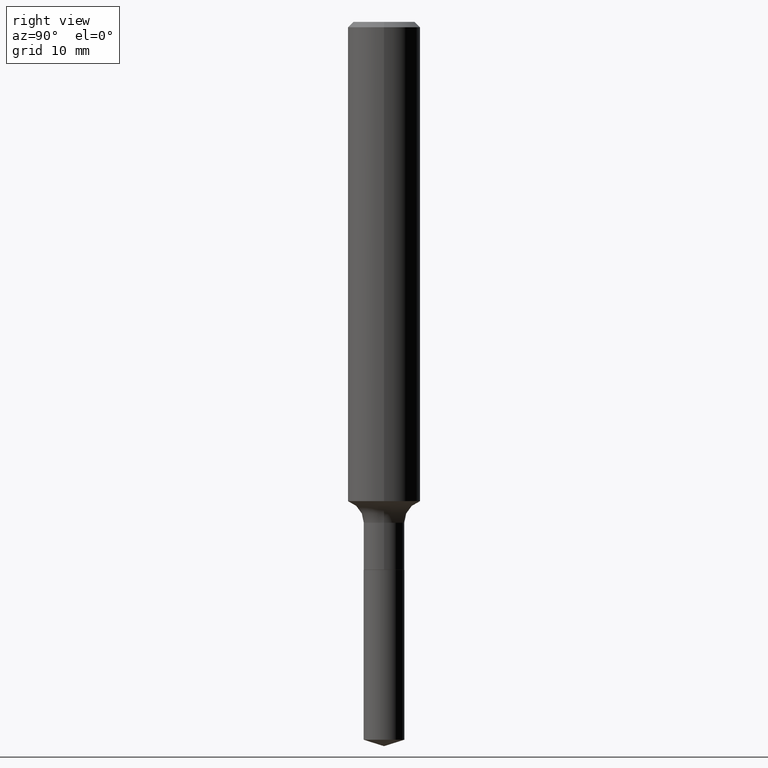
[diagram: clean part render]
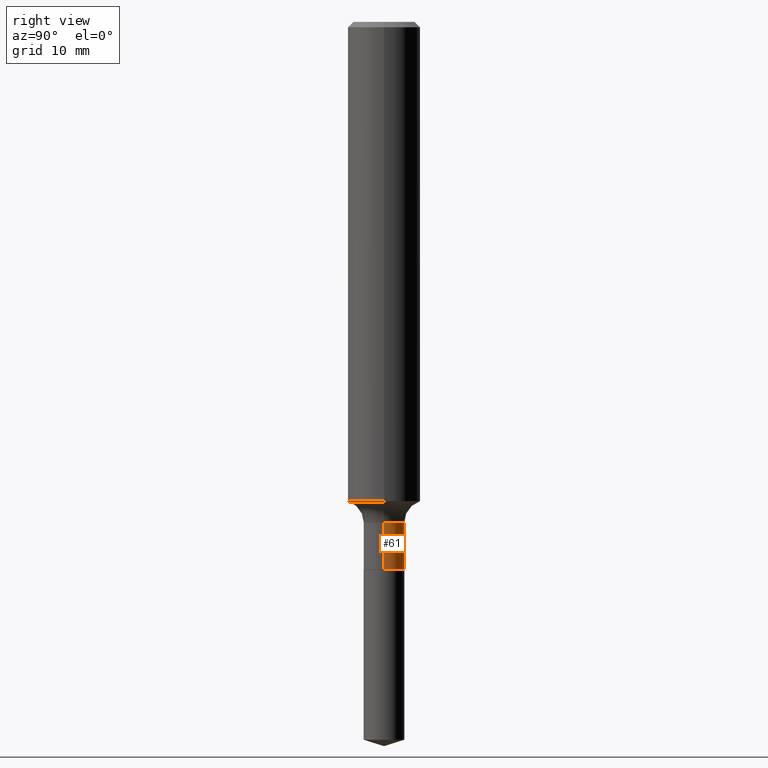
[diagram: same view with one face highlighted and labeled with its STEP entity id]
A machine part, right view. The second image highlights one B-rep face of the part: STEP entity #61.
In plain terms, the highlighted cylindrical surface (edge-blend (fillet) strip) has radius 1.7856 mm, axis along (-0, 0, 1).
Its self-contained STEP definition (entity closure, byte-faithful):
#11 = EDGE_CURVE ( 'NONE', #13, #136, #66, .T. ) ;
#12 = CARTESIAN_POINT ( 'NONE',  ( -0.07030000000000000138, -5.818323939397324002E-15, -1.890100000000000335 ) ) ;
#13 = VERTEX_POINT ( 'NONE', #65 ) ;
#29 = CARTESIAN_POINT ( 'NONE',  ( 0.000000000000000000, 0.000000000000000000, 0.000000000000000000 ) ) ;
#50 = VECTOR ( 'NONE', #208, 39.37007874015748143 ) ;
#51 = LINE ( 'NONE', #240, #50 ) ;
#53 = CARTESIAN_POINT ( 'NONE',  ( 4.227971019013483248E-29, -6.036422086725915643E-15, -1.728900000000000325 ) ) ;
#61 = ADVANCED_FACE ( 'NONE', ( #100 ), #407, .T. ) ;
#65 = CARTESIAN_POINT ( 'NONE',  ( 0.07030000000000000138, -7.090151154788775429E-15, -1.890100000000000335 ) ) ;
#66 = LINE ( 'NONE', #335, #356 ) ;
#68 = AXIS2_PLACEMENT_3D ( 'NONE', #53, #467, #311 ) ;
#80 = EDGE_CURVE ( 'NONE', #13, #315, #392, .T. ) ;
#100 = FACE_OUTER_BOUND ( 'NONE', #323, .T. ) ;
#136 = VERTEX_POINT ( 'NONE', #221 ) ;
#143 = DIRECTION ( 'NONE',  ( -2.445468806185136597E-29, 3.491481338843145583E-15, 1.000000000000000000 ) ) ;
#180 = CARTESIAN_POINT ( 'NONE',  ( 4.622180590570527221E-29, -6.599248878547431270E-15, -1.890100000000000335 ) ) ;
#208 = DIRECTION ( 'NONE',  ( -2.445468806185136877E-29, 3.491481338843145188E-15, 1.000000000000000000 ) ) ;
#210 = ORIENTED_EDGE ( 'NONE', *, *, #11, .F. ) ;
#221 = CARTESIAN_POINT ( 'NONE',  ( 0.07029999999999998750, -6.527324362967259801E-15, -1.728900000000000325 ) ) ;
#235 = CARTESIAN_POINT ( 'NONE',  ( -0.07029999999999998750, -5.818323939397324002E-15, -1.728900000000000325 ) ) ;
#240 = CARTESIAN_POINT ( 'NONE',  ( -0.07029999999999998750, 4.995115432393503418E-16, -3.458011368449198169E-30 ) ) ;
#251 = DIRECTION ( 'NONE',  ( 1.000000000000000000, -6.982962677686266711E-15, 4.876176775795935793E-29 ) ) ;
#256 = DIRECTION ( 'NONE',  ( -2.445468806185136877E-29, 3.491481338843145188E-15, 1.000000000000000000 ) ) ;
#274 = ORIENTED_EDGE ( 'NONE', *, *, #80, .T. ) ;
#280 = VERTEX_POINT ( 'NONE', #235 ) ;
#294 = DIRECTION ( 'NONE',  ( -2.445468806185136597E-29, 3.491481338843145583E-15, 1.000000000000000000 ) ) ;
#303 = AXIS2_PLACEMENT_3D ( 'NONE', #180, #143, #488 ) ;
#306 = ORIENTED_EDGE ( 'NONE', *, *, #429, .F. ) ;
#311 = DIRECTION ( 'NONE',  ( 1.000000000000000000, -6.982962677686266711E-15, 0.000000000000000000 ) ) ;
#315 = VERTEX_POINT ( 'NONE', #12 ) ;
#323 = EDGE_LOOP ( 'NONE', ( #274, #380, #306, #210 ) ) ;
#335 = CARTESIAN_POINT ( 'NONE',  ( 0.07029999999999998750, -4.909022762413444543E-16, 3.427952273384542436E-30 ) ) ;
#356 = VECTOR ( 'NONE', #256, 39.37007874015748143 ) ;
#360 = AXIS2_PLACEMENT_3D ( 'NONE', #29, #294, #251 ) ;
#380 = ORIENTED_EDGE ( 'NONE', *, *, #460, .T. ) ;
#392 = CIRCLE ( 'NONE', #303, 0.07030000000000000138 ) ;
#407 = CYLINDRICAL_SURFACE ( 'NONE', #360, 0.07029999999999998750 ) ;
#429 = EDGE_CURVE ( 'NONE', #136, #280, #458, .T. ) ;
#458 = CIRCLE ( 'NONE', #68, 0.07029999999999998750 ) ;
#460 = EDGE_CURVE ( 'NONE', #315, #280, #51, .T. ) ;
#467 = DIRECTION ( 'NONE',  ( -2.445468806185136597E-29, 3.491481338843145583E-15, 1.000000000000000000 ) ) ;
#488 = DIRECTION ( 'NONE',  ( 1.000000000000000000, -6.982962677686265133E-15, 0.000000000000000000 ) ) ;